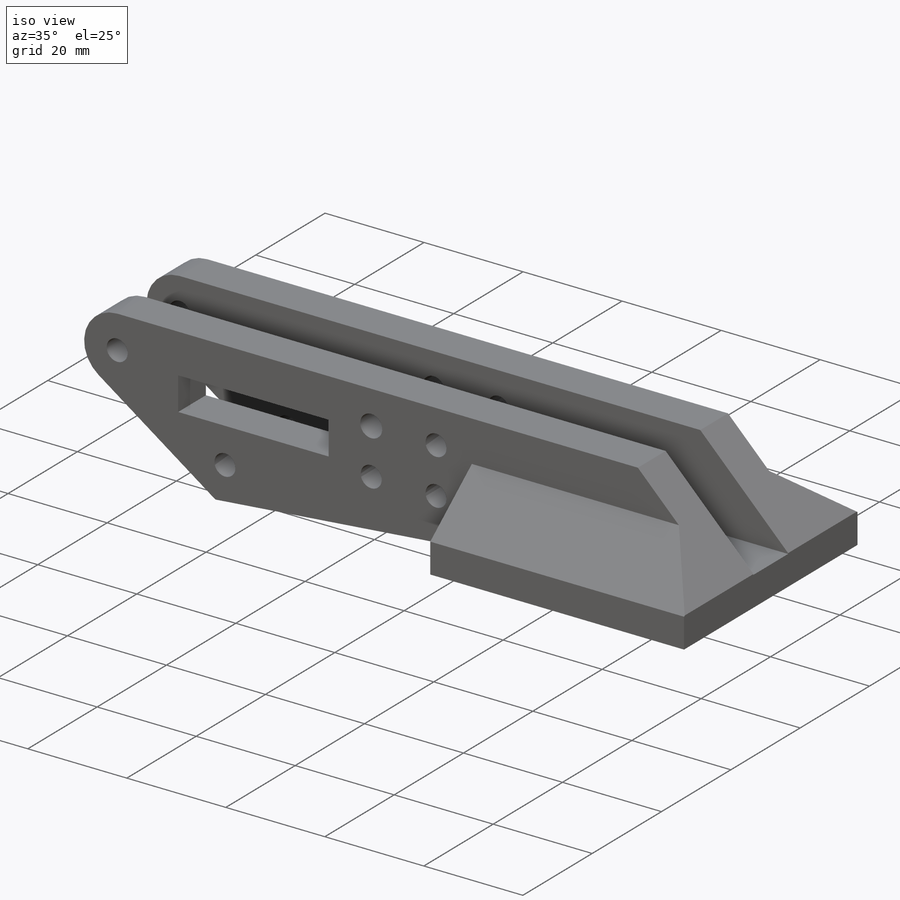
[diagram: iso view]
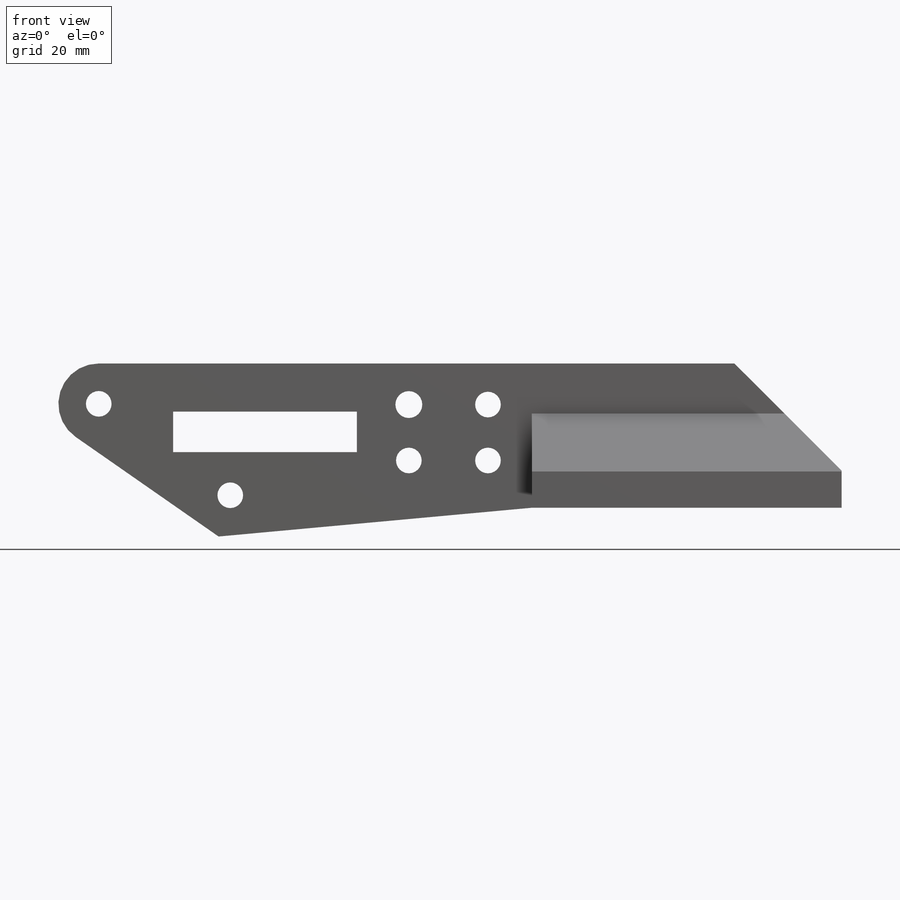
[diagram: front view]
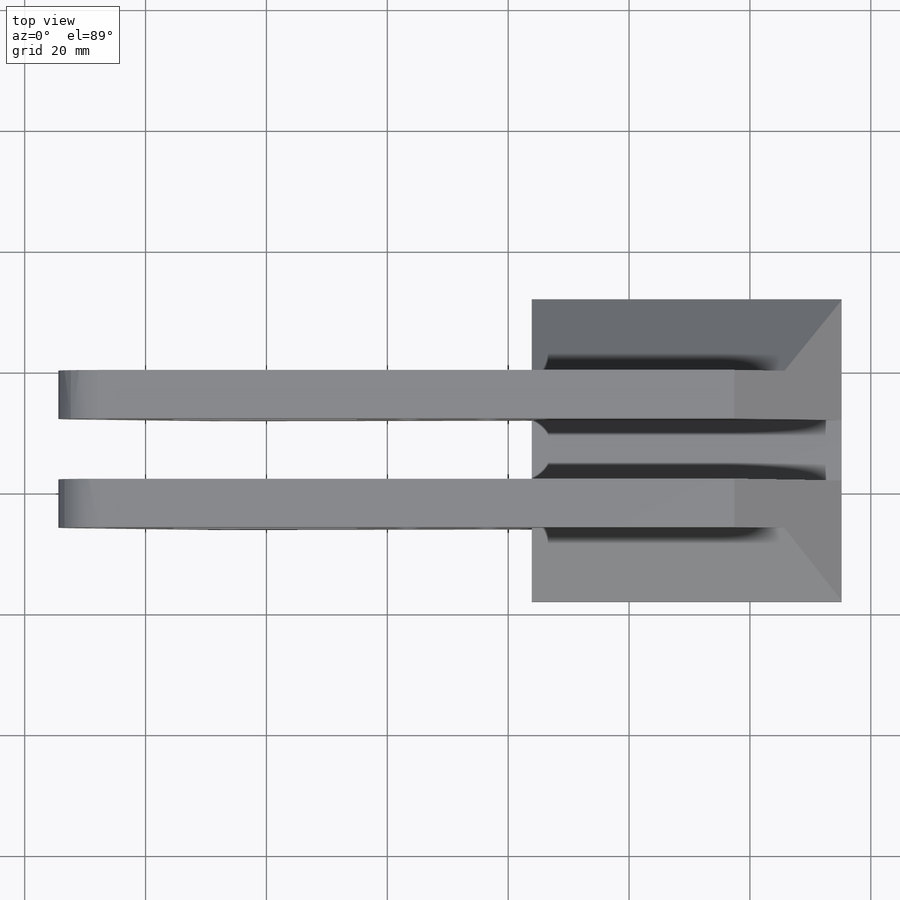
[diagram: top view]
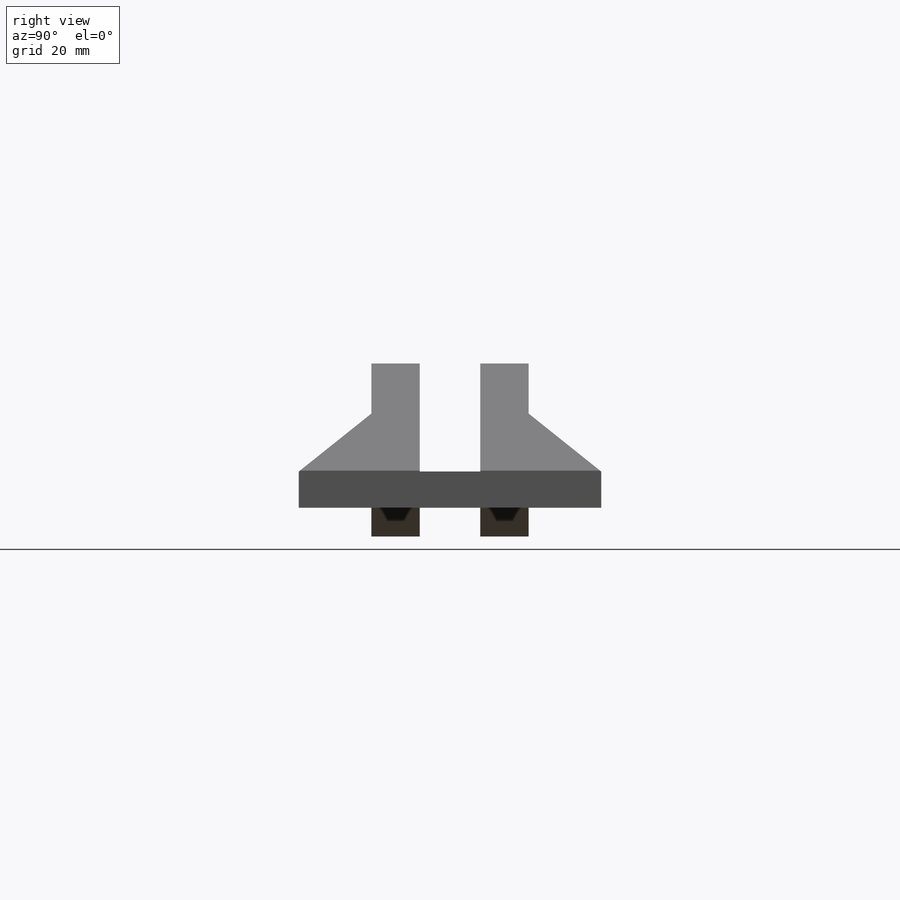
[diagram: right view]
SOLIDWORKS PART (.sldprt)
format: sldprt  version: not decoded by parser v0  size: 445,952 bytes
history: native  units: mm
features: sketch x20, cut_extrude x7, extrude x5, plane x4, hole x4, material x1 (+10 scaffold rows collapsed)
feature tree (51):
  scaffold x10  (default folders/planes/origin — collapsed)
  material  "Material <não especificado>"
  plane  "Plano frontal"
  plane  "Plano superior"
  plane  "Plano direito"
  plane  "Plano1"  Offset=8mm
  sketch  "Esboço1"
  extrude  "Ressalto-extrusão1"  Depth=8mm
  sketch  "Esboço2"
  extrude  "Ressalto-extrusão2"  Depth=51.268118mm
  sketch  "Esboço3"
  cut_extrude  "Corte-extrusão1"  Depth=8mm
  sketch  "Esboço4"
  cut_extrude  "Corte-extrusão2"  Depth=17.7231mm
  sketch  "Esboço5"
  cut_extrude  "Corte-extrusão3"  Depth=40.852574mm
  sketch  "Esboço6"
  cut_extrude  "Corte-extrusão4"  Depth=0.151992mm
  sketch  "Esboço7"
  extrude  "Ressalto-extrusão3"  Depth=8mm
  sketch  "Esboço8"
  extrude  "Ressalto-extrusão4"  Depth=12.017233mm
  sketch  "Esboço9"
  extrude  "Ressalto-extrusão5"  Depth=12.017233mm
  sketch  "Esboço10"
  cut_extrude  "Corte-extrusão5"  Depth=8mm
  sketch  "Esboço11"
  cut_extrude  "Corte-extrusão6"  Depth=8mm
  sketch  "Esboço12"
  cut_extrude  "Corte-extrusão7"  Depth=3.15mm
  hole  "Furo com folga de M41"  Diameter=4.452841mm Depth=8mm
  sketch  "Esboço14"
  sketch  "Esboço13"  dims[hole-wizard template sketch: 59 standard entries collapsed; hole parameters kept: c18.Thru Hole Dia.=~4.452841mm c18.Thru Hole Depth=8.0mm]
  hole  "Furo de diâmetro Ø4.2 (4.2)1"  Diameter=4.2mm Depth=8mm
  sketch  "Esboço16"
  sketch  "Esboço15"  dims[hole-wizard template sketch: 61 standard entries collapsed; hole parameters above]
  hole  "Furo com folga de M42"  Diameter=4.452841mm Depth=38.017233mm
  sketch  "Esboço18"
  sketch  "Esboço17"  dims[hole-wizard template sketch: 59 standard entries collapsed; hole parameters kept: c18.Thru Hole Dia.=~4.452841mm c18.Thru Hole Depth=~38.017233mm]
  hole  "Furo1"  Diameter=4.24643mm Depth=38.017233mm
  sketch  "Esboço20"
  sketch  "Esboço19"  dims[Diameter=~4.24643mm Depth=~38.017233mm]
decode coverage: 20 of 36 modeling features carry decoded parameters
note: ~ marks probable driven/reference dimensions
summary: Diameter pulled from absorbed wizard sketch
note: suppression state not decoded; provenance and decode notes live in map.json
